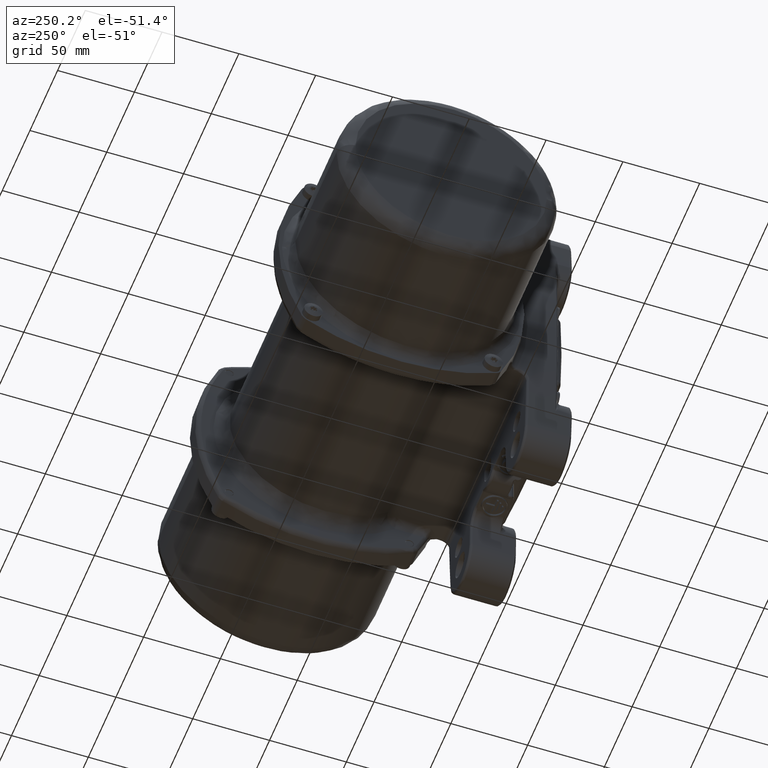
[diagram: clean part render]
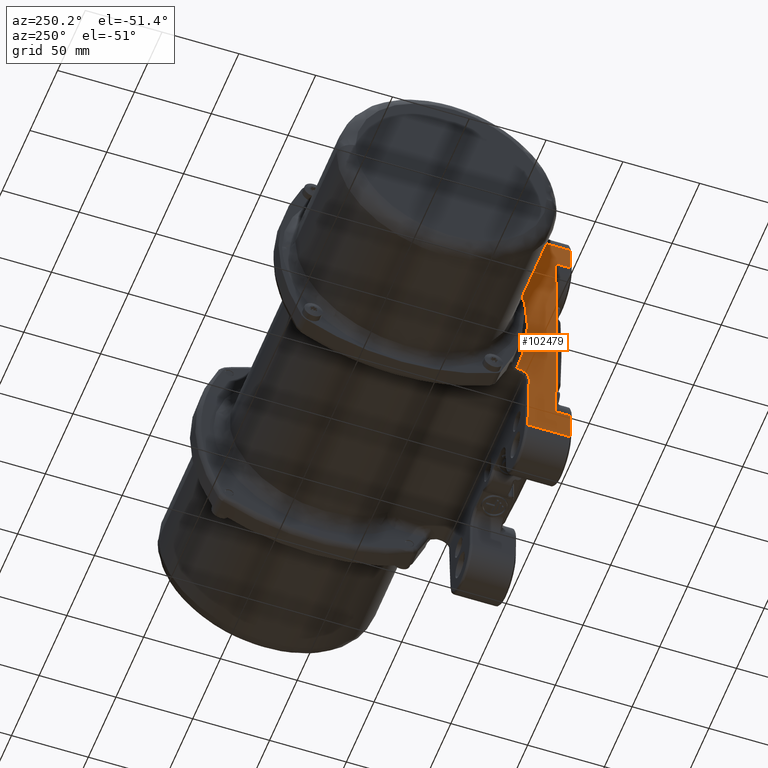
[diagram: same view with one face highlighted and labeled with its STEP entity id]
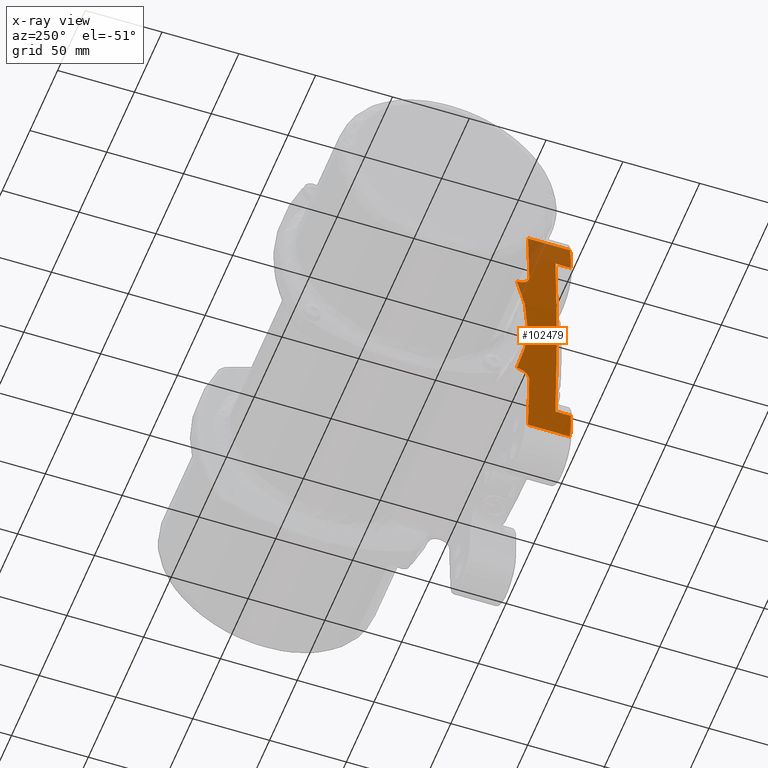
[diagram: x-ray of the same camera — body ghosted, the highlighted face saturated]
A machine part, auxiliary view. The second image highlights one B-rep face of the part: STEP entity #102479.
The next image is the same camera in x-ray: the body ghosted, the highlighted face saturated — about 8% of this face is hidden behind the body in this view.
In plain terms, the highlighted cylindrical surface (partial cylindrical patch) has radius 1177.39 mm, axis along (-0, -1, -0).
Its self-contained STEP definition (entity closure, byte-faithful):
#553 = CARTESIAN_POINT ( 'NONE',  ( -71.21627488452458000, 33.57822007904965000, -42.95224808498743800 ) ) ;
#662 = EDGE_CURVE ( 'NONE', #43016, #98398, #126222, .T. ) ;
#731 = CARTESIAN_POINT ( 'NONE',  ( -71.08911366579150100, 29.50244555479094900, 46.30506863099319800 ) ) ;
#1234 = AXIS2_PLACEMENT_3D ( 'NONE', #4988, #96762, #50807 ) ;
#1505 = CARTESIAN_POINT ( 'NONE',  ( -71.20252350285687700, 32.67630001880889500, -43.32740203258459400 ) ) ;
#1990 = CARTESIAN_POINT ( 'NONE',  ( -70.93514042025650200, 28.50000000000000000, -50.06378132118450000 ) ) ;
#2753 = CARTESIAN_POINT ( 'NONE',  ( -69.76031444216370400, 30.00000000000000000, 72.58762542394389100 ) ) ;
#3221 = CIRCLE ( 'NONE', #19926, 1177.392857142863900 ) ;
#4139 = B_SPLINE_CURVE_WITH_KNOTS ( 'NONE', 3,
 ( #1990, #58707, #58228, #34520, #92288, #13763, #24624, #104102, #36456, #46809, #11810, #102649, #57252, #136234, #125365, #1505, #115477, #35982, #553, #90835, #23158, #91792, #113549, #35004 ),
 .UNSPECIFIED., .F., .F.,
 ( 4, 2, 2, 2, 2, 2, 2, 2, 2, 2, 2, 4 ),
 ( 0.0000000000000000000, 0.1250000000000000800, 0.1875000000000001900, 0.2500000000000000000, 0.3750000000000004400, 0.5000000000000000000, 0.6250000000000003300, 0.6875000000000001100, 0.7500000000000007800, 0.8125000000000005600, 0.8750000000000003300, 1.000000000000000000 ),
 .UNSPECIFIED. ) ;
#4988 = CARTESIAN_POINT ( 'NONE',  ( 1105.392857142863900, 0.9999999999999310600, -1.452989782265610000E-019 ) ) ;
#5215 = CARTESIAN_POINT ( 'NONE',  ( -71.23073556272569800, 36.70701848268949900, 42.55421412300715600 ) ) ;
#5545 = ORIENTED_EDGE ( 'NONE', *, *, #110200, .T. ) ;
#7015 = EDGE_CURVE ( 'NONE', #49846, #16510, #65194, .T. ) ;
#7880 = CARTESIAN_POINT ( 'NONE',  ( -69.76031444216370400, 11.00000000000000000, -72.58762542394359200 ) ) ;
#8105 = CARTESIAN_POINT ( 'NONE',  ( -71.99655519911397100, 30.02918470274330100, 3.089023474305161900 ) ) ;
#8955 = DIRECTION ( 'NONE',  ( -1.387778780781446000E-017, -1.000000000000000000, -3.081487911019580100E-033 ) ) ;
#9078 = CARTESIAN_POINT ( 'NONE',  ( -71.99973066463465400, 30.00228070087781200, 0.8278969423232154200 ) ) ;
#11037 = CARTESIAN_POINT ( 'NONE',  ( -71.23073556272569800, 36.00000000000000000, 42.55421412300724900 ) ) ;
#11549 = EDGE_LOOP ( 'NONE', ( #54235, #138947, #5545, #97551, #145451, #89577, #105645, #60368, #15858, #118519, #145436, #65533, #40008, #30054 ) ) ;
#11810 = CARTESIAN_POINT ( 'NONE',  ( -71.13583444504736500, 30.34806263771864500, -45.10319410281149300 ) ) ;
#12011 = CARTESIAN_POINT ( 'NONE',  ( -71.21336036583279800, 33.35592560602290000, 43.03205612273659900 ) ) ;
#12500 = CARTESIAN_POINT ( 'NONE',  ( -71.12147021891988200, 30.04124950809329800, 45.47687298318350500 ) ) ;
#12555 = AXIS2_PLACEMENT_3D ( 'NONE', #128147, #139962, #60535 ) ;
#13638 = DIRECTION ( 'NONE',  ( -1.387778780781446000E-017, -1.000000000000000000, -3.081487911019580100E-033 ) ) ;
#13763 = CARTESIAN_POINT ( 'NONE',  ( -71.03530362078048200, 28.89282848984054700, -47.65268353418078800 ) ) ;
#15858 = ORIENTED_EDGE ( 'NONE', *, *, #128282, .T. ) ;
#16510 = VERTEX_POINT ( 'NONE', #53095 ) ;
#16552 = EDGE_CURVE ( 'NONE', #21606, #95344, #3221, .T. ) ;
#19401 = CARTESIAN_POINT ( 'NONE',  ( -71.86276544224377000, 31.17276012713783800, -17.99814959951086400 ) ) ;
#19897 = CARTESIAN_POINT ( 'NONE',  ( -71.99996188801078700, 30.00032296334975600, 0.3754089972784835400 ) ) ;
#19926 = AXIS2_PLACEMENT_3D ( 'NONE', #101466, #55081, #133585 ) ;
#21606 = VERTEX_POINT ( 'NONE', #62038 ) ;
#21878 = CARTESIAN_POINT ( 'NONE',  ( -71.20300352951089500, 32.67489386346854700, 43.31461915585670400 ) ) ;
#22416 = AXIS2_PLACEMENT_3D ( 'NONE', #47170, #13638, #23993 ) ;
#23158 = CARTESIAN_POINT ( 'NONE',  ( -71.22369788276746800, 34.28757768696920000, -42.74838998301604700 ) ) ;
#23303 = EDGE_CURVE ( 'NONE', #103292, #53399, #45463, .T. ) ;
#23825 = CARTESIAN_POINT ( 'NONE',  ( -71.06318278343199800, 29.16652576083925300, 46.95931407709500100 ) ) ;
#23993 = DIRECTION ( 'NONE',  ( 0.0000000000000000000, 0.0000000000000000000, -1.000000000000000000 ) ) ;
#24624 = CARTESIAN_POINT ( 'NONE',  ( -71.04476934750287900, 28.97646876200324300, -47.41837974202209000 ) ) ;
#24641 = CARTESIAN_POINT ( 'NONE',  ( -71.23073556272551300, 30.00000000000000000, 42.55421412300770400 ) ) ;
#30054 = ORIENTED_EDGE ( 'NONE', *, *, #23303, .T. ) ;
#30290 = CARTESIAN_POINT ( 'NONE',  ( -72.00001223083685900, 29.99989686883340700, 0.1479177154003872000 ) ) ;
#30780 = CARTESIAN_POINT ( 'NONE',  ( -71.76971560206378300, 31.97380317373774300, 23.30251866499048700 ) ) ;
#31886 = LINE ( 'NONE', #24641, #83223 ) ;
#34520 = CARTESIAN_POINT ( 'NONE',  ( -71.00636887872366300, 28.69109926012164300, -48.36174753542099600 ) ) ;
#35004 = CARTESIAN_POINT ( 'NONE',  ( -71.23073556272569800, 36.00000000000000000, -42.55421412300655200 ) ) ;
#35204 = CARTESIAN_POINT ( 'NONE',  ( -70.97677985619189700, 28.54851912272269800, 49.07802618156939200 ) ) ;
#35982 = CARTESIAN_POINT ( 'NONE',  ( -71.21325191434266300, 33.34822016884999800, -43.03502048798829100 ) ) ;
#36191 = CARTESIAN_POINT ( 'NONE',  ( -71.23073556272569800, 36.70701848268949900, 42.55421412300715600 ) ) ;
#36456 = CARTESIAN_POINT ( 'NONE',  ( -71.08914201156456200, 29.48830345308179100, -46.30564133712599100 ) ) ;
#37222 = DIRECTION ( 'NONE',  ( -1.387778780781446000E-017, -1.000000000000000000, -3.081487911019580100E-033 ) ) ;
#39100 = VECTOR ( 'NONE', #8955, 1000.000000000000000 ) ;
#40008 = ORIENTED_EDGE ( 'NONE', *, *, #94222, .T. ) ;
#41182 = CARTESIAN_POINT ( 'NONE',  ( -71.67551049364342900, 32.78834521815604600, 27.73959638147073600 ) ) ;
#41538 = DIRECTION ( 'NONE',  ( 0.0000000000000000000, 0.0000000000000000000, 1.000000000000000000 ) ) ;
#41541 = DIRECTION ( 'NONE',  ( 1.387778780781446000E-017, 1.000000000000000000, 3.081487911019580100E-033 ) ) ;
#41648 = CARTESIAN_POINT ( 'NONE',  ( -71.60926645212620700, 33.36467993059039800, 30.38118145695436900 ) ) ;
#42617 = CARTESIAN_POINT ( 'NONE',  ( -71.73319165663309600, 32.28931299317760300, 25.07977841356581500 ) ) ;
#43016 = VERTEX_POINT ( 'NONE', #49462 ) ;
#43215 = CARTESIAN_POINT ( 'NONE',  ( -71.23073556272569800, 36.00000000000000000, 42.55421412300724900 ) ) ;
#44379 = VECTOR ( 'NONE', #64946, 1000.000000000000000 ) ;
#45463 = LINE ( 'NONE', #87676, #86206 ) ;
#45551 = CARTESIAN_POINT ( 'NONE',  ( -71.22378901763139000, 34.29871824599370500, 42.74588055279444600 ) ) ;
#46512 = EDGE_CURVE ( 'NONE', #96660, #132357, #105696, .T. ) ;
#46518 = CARTESIAN_POINT ( 'NONE',  ( -71.01667514673650300, 28.75403743419780200, 48.11036891322199700 ) ) ;
#46809 = CARTESIAN_POINT ( 'NONE',  ( -71.12097451912687500, 30.03169329687194600, -45.48967643393429200 ) ) ;
#47170 = CARTESIAN_POINT ( 'NONE',  ( 1105.392857142863900, 30.00000000000000000, -1.452989782264718100E-019 ) ) ;
#47481 = VERTEX_POINT ( 'NONE', #43215 ) ;
#47918 = CARTESIAN_POINT ( 'NONE',  ( -70.93514042025650200, 28.50000000000000000, -50.06378132118450000 ) ) ;
#49462 = CARTESIAN_POINT ( 'NONE',  ( -68.44412770809570600, 28.50000000000000000, -91.43671607753680100 ) ) ;
#49846 = VERTEX_POINT ( 'NONE', #84259 ) ;
#50807 = DIRECTION ( 'NONE',  ( 0.0000000000000000000, 0.0000000000000000000, -1.000000000000000000 ) ) ;
#51894 = CARTESIAN_POINT ( 'NONE',  ( 1105.392857142863900, 28.50000000000000000, -1.452989782264764000E-019 ) ) ;
#53095 = CARTESIAN_POINT ( 'NONE',  ( -69.76031444216360500, 0.9999999999999310600, 72.58762542394389100 ) ) ;
#53399 = VERTEX_POINT ( 'NONE', #128509 ) ;
#53562 = CARTESIAN_POINT ( 'NONE',  ( -69.76031444216370400, 30.00000000000000000, -72.58762542394349300 ) ) ;
#53959 = CARTESIAN_POINT ( 'NONE',  ( -71.94265257690078400, 30.48769001516429700, 12.55914394033615100 ) ) ;
#54235 = ORIENTED_EDGE ( 'NONE', *, *, #145873, .F. ) ;
#55081 = DIRECTION ( 'NONE',  ( -1.387778780781446000E-017, -1.000000000000000000, -3.081487911019580100E-033 ) ) ;
#57252 = CARTESIAN_POINT ( 'NONE',  ( -71.17386995611028100, 31.41644336344850400, -44.09934543763274200 ) ) ;
#57442 = CARTESIAN_POINT ( 'NONE',  ( -71.23073556267120000, 35.50462827078670400, 42.55421412451550400 ) ) ;
#58188 = VERTEX_POINT ( 'NONE', #36191 ) ;
#58228 = CARTESIAN_POINT ( 'NONE',  ( -70.97665896751966800, 28.54851451595189400, -49.08087049549578800 ) ) ;
#58707 = CARTESIAN_POINT ( 'NONE',  ( -70.95623073048669500, 28.50000000149174500, -49.56823101023429200 ) ) ;
#59350 = EDGE_CURVE ( 'NONE', #47481, #58188, #31886, .T. ) ;
#59660 = DIRECTION ( 'NONE',  ( 1.387778780781446000E-017, 1.000000000000000000, 3.081487911019580100E-033 ) ) ;
#60368 = ORIENTED_EDGE ( 'NONE', *, *, #94732, .T. ) ;
#60535 = DIRECTION ( 'NONE',  ( 0.0000000000000000000, 0.0000000000000000000, -1.000000000000000000 ) ) ;
#62038 = CARTESIAN_POINT ( 'NONE',  ( -68.44412770809570600, 28.50000000000000000, 91.43671607753690000 ) ) ;
#63883 = CARTESIAN_POINT ( 'NONE',  ( -71.97461426181044400, 30.21483079603637400, -9.066223887750476600 ) ) ;
#64526 = FACE_OUTER_BOUND ( 'NONE', #11549, .T. ) ;
#64946 = DIRECTION ( 'NONE',  ( 1.387778780781446000E-017, 1.000000000000000000, 3.081487911019580100E-033 ) ) ;
#65194 = LINE ( 'NONE', #2753, #105860 ) ;
#65533 = ORIENTED_EDGE ( 'NONE', *, *, #59350, .T. ) ;
#65580 = LINE ( 'NONE', #95348, #39100 ) ;
#67250 = CARTESIAN_POINT ( 'NONE',  ( -70.93514042025650200, 28.50000000000000000, 50.06378132118489800 ) ) ;
#68287 = CARTESIAN_POINT ( 'NONE',  ( -71.00681988727770000, 28.69355894881214700, 48.35078901577599500 ) ) ;
#68765 = CARTESIAN_POINT ( 'NONE',  ( -71.19451033620168800, 32.24422709768749900, 43.54516046587505000 ) ) ;
#68781 = EDGE_CURVE ( 'NONE', #132357, #98567, #69361, .T. ) ;
#68809 = B_SPLINE_CURVE_WITH_KNOTS ( 'NONE', 3,
 ( #11037, #57442, #113238, #45551, #80155, #69253, #12011, #21878, #68765, #79168, #135950, #124574, #12500, #91519, #731, #90542, #23825, #102838, #100885, #46518, #68287, #35204, #114225, #125560 ),
 .UNSPECIFIED., .F., .F.,
 ( 4, 2, 2, 2, 2, 2, 2, 2, 2, 2, 2, 4 ),
 ( 0.0000000000000000000, 0.1250000000000000000, 0.1875000000000000300, 0.2500000000000000000, 0.3750000000000000600, 0.5000000000000000000, 0.6250000000000000000, 0.6875000000000004400, 0.7500000000000001100, 0.8125000000000003300, 0.8749999999999992200, 1.000000000000000000 ),
 .UNSPECIFIED. ) ;
#69253 = CARTESIAN_POINT ( 'NONE',  ( -71.21642303044950500, 33.59005204851764900, 42.94818939179940300 ) ) ;
#69361 = LINE ( 'NONE', #53562, #44379 ) ;
#70108 = AXIS2_PLACEMENT_3D ( 'NONE', #138616, #59660, #116882 ) ;
#73302 = CARTESIAN_POINT ( 'NONE',  ( -71.35517745067866700, 35.59500558852860100, 39.11339717212286600 ) ) ;
#79168 = CARTESIAN_POINT ( 'NONE',  ( -71.17422723868669700, 31.42917488594825000, 44.08979769984765100 ) ) ;
#80155 = CARTESIAN_POINT ( 'NONE',  ( -71.22162995975620000, 34.06113192679859500, 42.80530226776549800 ) ) ;
#81980 = VERTEX_POINT ( 'NONE', #107346 ) ;
#82404 = LINE ( 'NONE', #129949, #133380 ) ;
#82946 = CIRCLE ( 'NONE', #12555, 1177.392857142863900 ) ;
#83223 = VECTOR ( 'NONE', #114055, 1000.000000000000000 ) ;
#84259 = CARTESIAN_POINT ( 'NONE',  ( -69.76031444216370400, 11.00000000000000000, 72.58762542394380500 ) ) ;
#85385 = EDGE_CURVE ( 'NONE', #98567, #49846, #82946, .T. ) ;
#86206 = VECTOR ( 'NONE', #142448, 1000.000000000000000 ) ;
#87167 = EDGE_CURVE ( 'NONE', #47481, #95344, #68809, .T. ) ;
#87199 = CARTESIAN_POINT ( 'NONE',  ( -68.44412770809570600, 0.9999999999999310600, -91.43671607753680100 ) ) ;
#87592 = CARTESIAN_POINT ( 'NONE',  ( -71.83416974714819500, 31.41855004637027800, -19.78033005180864700 ) ) ;
#87676 = CARTESIAN_POINT ( 'NONE',  ( -71.23073556272569800, 30.00000000000000000, -42.55421412300625400 ) ) ;
#89577 = ORIENTED_EDGE ( 'NONE', *, *, #85385, .T. ) ;
#90542 = CARTESIAN_POINT ( 'NONE',  ( -71.07198738398140800, 29.27105976150840000, 46.73817081534929900 ) ) ;
#90748 = CIRCLE ( 'NONE', #70108, 1177.392857142863900 ) ;
#90835 = CARTESIAN_POINT ( 'NONE',  ( -71.22149439828116600, 34.04737977113674700, -42.80902864127369200 ) ) ;
#91519 = CARTESIAN_POINT ( 'NONE',  ( -71.09747931630930400, 29.63009751173100200, 46.09197731089729900 ) ) ;
#91792 = CARTESIAN_POINT ( 'NONE',  ( -71.22897828657977500, 35.01457394379028200, -42.60288562572849700 ) ) ;
#92288 = CARTESIAN_POINT ( 'NONE',  ( -71.01611642795856500, 28.75034930032919100, -48.12403336986199100 ) ) ;
#94222 = EDGE_CURVE ( 'NONE', #58188, #103292, #135103, .T. ) ;
#94732 = EDGE_CURVE ( 'NONE', #16510, #81980, #90748, .T. ) ;
#95344 = VERTEX_POINT ( 'NONE', #67250 ) ;
#95348 = CARTESIAN_POINT ( 'NONE',  ( -68.44412770809559300, 30.00000000000000000, -91.43671607753650200 ) ) ;
#96660 = VERTEX_POINT ( 'NONE', #87199 ) ;
#96762 = DIRECTION ( 'NONE',  ( 1.387778780781446000E-017, 1.000000000000000000, 3.081487911019580100E-033 ) ) ;
#97450 = CARTESIAN_POINT ( 'NONE',  ( -71.98583156831279000, 30.12018383290854500, 6.250501091347587100 ) ) ;
#97551 = ORIENTED_EDGE ( 'NONE', *, *, #46512, .T. ) ;
#97923 = CARTESIAN_POINT ( 'NONE',  ( -71.81889146064578700, 31.55000965110101800, -20.66961277588804800 ) ) ;
#98398 = VERTEX_POINT ( 'NONE', #47918 ) ;
#98567 = VERTEX_POINT ( 'NONE', #7880 ) ;
#100885 = CARTESIAN_POINT ( 'NONE',  ( -71.03578348481150300, 28.89687833953585300, 47.64083090923490000 ) ) ;
#101466 = CARTESIAN_POINT ( 'NONE',  ( 1105.392857142863900, 28.50000000000000000, -1.452989782264764000E-019 ) ) ;
#102479 = ADVANCED_FACE ( 'NONE', ( #64526 ), #136939, .T. ) ;
#102649 = CARTESIAN_POINT ( 'NONE',  ( -71.16219251492876200, 31.03927654815474600, -44.41030705351274600 ) ) ;
#102793 = AXIS2_PLACEMENT_3D ( 'NONE', #51894, #143239, #41538 ) ;
#102838 = CARTESIAN_POINT ( 'NONE',  ( -71.04508082221819600, 28.97943499634534700, 47.41064410150170300 ) ) ;
#103292 = VERTEX_POINT ( 'NONE', #139041 ) ;
#104102 = CARTESIAN_POINT ( 'NONE',  ( -71.07211208627897700, 29.25831779962509300, -46.73674210031909100 ) ) ;
#105645 = ORIENTED_EDGE ( 'NONE', *, *, #7015, .T. ) ;
#105696 = CIRCLE ( 'NONE', #1234, 1177.392857142863900 ) ;
#105860 = VECTOR ( 'NONE', #37222, 1000.000000000000000 ) ;
#107346 = CARTESIAN_POINT ( 'NONE',  ( -68.44412770809570600, 0.9999999999999590300, 91.43671607753690000 ) ) ;
#109301 = CARTESIAN_POINT ( 'NONE',  ( -71.23073556272569800, 36.70701848268959800, -42.55421412300665200 ) ) ;
#110200 = EDGE_CURVE ( 'NONE', #43016, #96660, #65580, .T. ) ;
#110264 = CARTESIAN_POINT ( 'NONE',  ( -71.46568621339436300, 34.62041933873366900, 35.63999595431534600 ) ) ;
#110749 = CARTESIAN_POINT ( 'NONE',  ( -71.78698215834441500, 31.82489883897460100, 22.41352487403184700 ) ) ;
#113238 = CARTESIAN_POINT ( 'NONE',  ( -71.22897840996279200, 35.01747964307890000, 42.60287844751069700 ) ) ;
#113549 = CARTESIAN_POINT ( 'NONE',  ( -71.23073556269037000, 35.50461118586403600, -42.55421412397879500 ) ) ;
#114055 = DIRECTION ( 'NONE',  ( 1.387778780781446000E-017, 1.000000000000000000, 3.081487911019580100E-033 ) ) ;
#114225 = CARTESIAN_POINT ( 'NONE',  ( -70.95623091545640200, 28.50000000098305000, 49.56822666407629900 ) ) ;
#115477 = CARTESIAN_POINT ( 'NONE',  ( -71.20637620828328800, 32.89726016403109600, -43.22259752297989600 ) ) ;
#116882 = DIRECTION ( 'NONE',  ( 0.0000000000000000000, 0.0000000000000000000, -1.000000000000000000 ) ) ;
#118519 = ORIENTED_EDGE ( 'NONE', *, *, #16552, .T. ) ;
#120176 = CARTESIAN_POINT ( 'NONE',  ( -71.86872459648888900, 31.12070889468403900, 17.94184681052957200 ) ) ;
#120665 = CARTESIAN_POINT ( 'NONE',  ( -71.90265569933352200, 30.83030301587569300, -15.32283985129968200 ) ) ;
#124574 = CARTESIAN_POINT ( 'NONE',  ( -71.13599049833820200, 30.35163355335359700, 45.09912115231399800 ) ) ;
#125365 = CARTESIAN_POINT ( 'NONE',  ( -71.19395786379658400, 32.24356121361159900, -43.55938792297619200 ) ) ;
#125560 = CARTESIAN_POINT ( 'NONE',  ( -70.93514042025650200, 28.50000000000000000, 50.06378132118489800 ) ) ;
#126222 = CIRCLE ( 'NONE', #102793, 1177.392857142863900 ) ;
#128147 = CARTESIAN_POINT ( 'NONE',  ( 1105.392857142863900, 11.00000000000000000, -1.452989782265302100E-019 ) ) ;
#128282 = EDGE_CURVE ( 'NONE', #81980, #21606, #82404, .T. ) ;
#128509 = CARTESIAN_POINT ( 'NONE',  ( -71.23073556272569800, 36.00000000000000000, -42.55421412300655200 ) ) ;
#129949 = CARTESIAN_POINT ( 'NONE',  ( -68.44412770809559300, 30.00000000000000000, 91.43671607753700000 ) ) ;
#131512 = CARTESIAN_POINT ( 'NONE',  ( -71.99976127390269200, 30.00201639006957100, -3.679184038637303400 ) ) ;
#132357 = VERTEX_POINT ( 'NONE', #138936 ) ;
#132974 = CARTESIAN_POINT ( 'NONE',  ( -71.67204622190024600, 32.81503238989525800, -28.68732067696258900 ) ) ;
#133380 = VECTOR ( 'NONE', #41541, 1000.000000000000000 ) ;
#133585 = DIRECTION ( 'NONE',  ( 0.0000000000000000000, 0.0000000000000000000, -1.000000000000000000 ) ) ;
#135103 = B_SPLINE_CURVE_WITH_KNOTS ( 'NONE', 3,
 ( #5215, #73302, #110264, #41648, #41182, #42617, #30780, #110749, #120176, #53959, #97450, #8105, #143825, #9078, #19897, #30290, #131512, #63883, #120665, #19401, #87592, #97923, #132974, #142855, #109301 ),
 .UNSPECIFIED., .F., .F.,
 ( 4, 2, 1, 2, 2, 1, 1, 1, 1, 2, 2, 1, 1, 2, 2, 4 ),
 ( 0.0000000000000000000, 0.1250000000000000600, 0.1875000000000000300, 0.2187500000000000300, 0.2500000000000000600, 0.3750000000000000000, 0.4374999999999999400, 0.4687500000000000000, 0.4843750000000000000, 0.4921875000000000000, 0.5000000000000000000, 0.6249999999999998900, 0.6874999999999998900, 0.7187499999999998900, 0.7499999999999998900, 1.000000000000000000 ),
 .UNSPECIFIED. ) ;
#135950 = CARTESIAN_POINT ( 'NONE',  ( -71.16232579743079600, 31.04329893123069800, 44.40677377355550000 ) ) ;
#136234 = CARTESIAN_POINT ( 'NONE',  ( -71.18921465286285900, 32.03064530407859700, -43.68738105284893400 ) ) ;
#136939 = CYLINDRICAL_SURFACE ( 'NONE', #22416, 1177.392857142863900 ) ;
#138616 = CARTESIAN_POINT ( 'NONE',  ( 1105.392857142863900, 0.9999999999999039700, -1.452989782265610000E-019 ) ) ;
#138936 = CARTESIAN_POINT ( 'NONE',  ( -69.76031444216370400, 0.9999999999999039700, -72.58762542394359200 ) ) ;
#138947 = ORIENTED_EDGE ( 'NONE', *, *, #662, .F. ) ;
#139041 = CARTESIAN_POINT ( 'NONE',  ( -71.23073556272569800, 36.70701848268959800, -42.55421412300665200 ) ) ;
#139962 = DIRECTION ( 'NONE',  ( 1.387778780781446000E-017, 1.000000000000000000, 3.081487911019580100E-033 ) ) ;
#142448 = DIRECTION ( 'NONE',  ( -1.387778780781446000E-017, -1.000000000000000000, -3.081487911019580100E-033 ) ) ;
#142855 = CARTESIAN_POINT ( 'NONE',  ( -71.47915045493988400, 34.48718263972873600, -35.68554485059650700 ) ) ;
#143239 = DIRECTION ( 'NONE',  ( 1.387778780781446000E-017, 1.000000000000000000, 3.081487911019580100E-033 ) ) ;
#143825 = CARTESIAN_POINT ( 'NONE',  ( -71.99918826002475200, 30.00687362790136300, 1.506501852911482200 ) ) ;
#145436 = ORIENTED_EDGE ( 'NONE', *, *, #87167, .F. ) ;
#145451 = ORIENTED_EDGE ( 'NONE', *, *, #68781, .T. ) ;
#145873 = EDGE_CURVE ( 'NONE', #98398, #53399, #4139, .T. ) ;